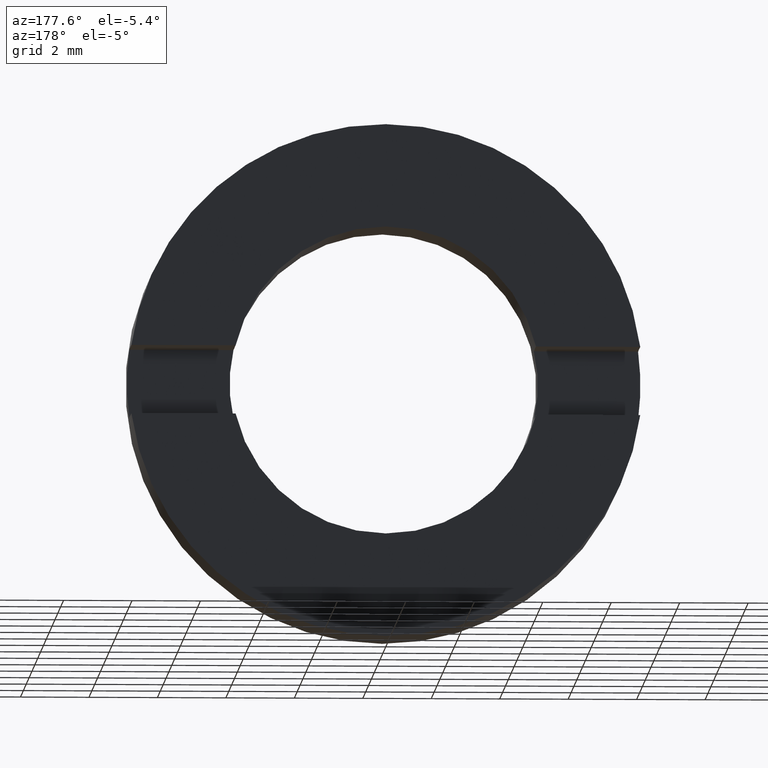
[diagram: clean part render]
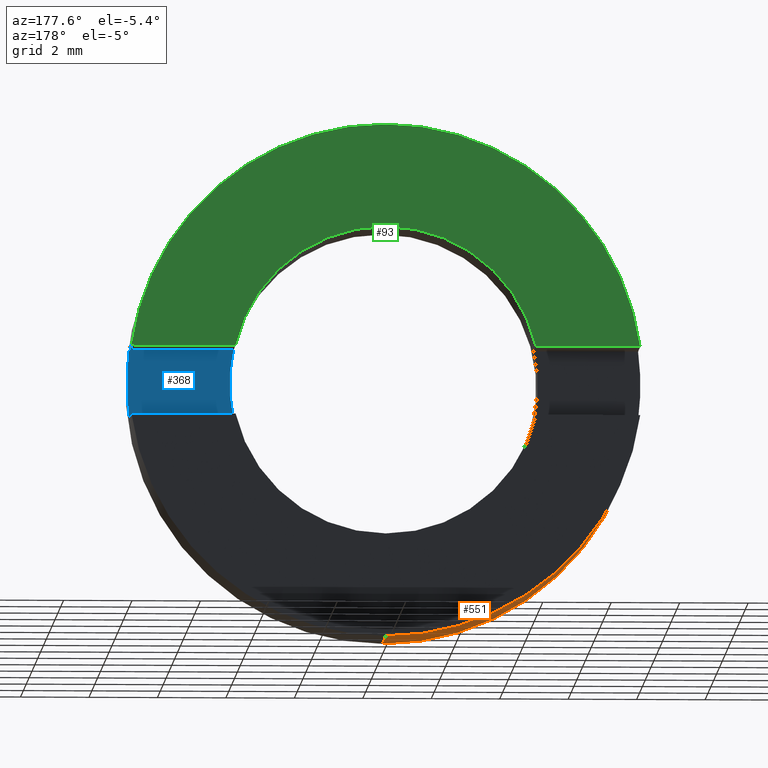
[diagram: same view with three faces highlighted in distinct colors, each labeled with its STEP entity id]
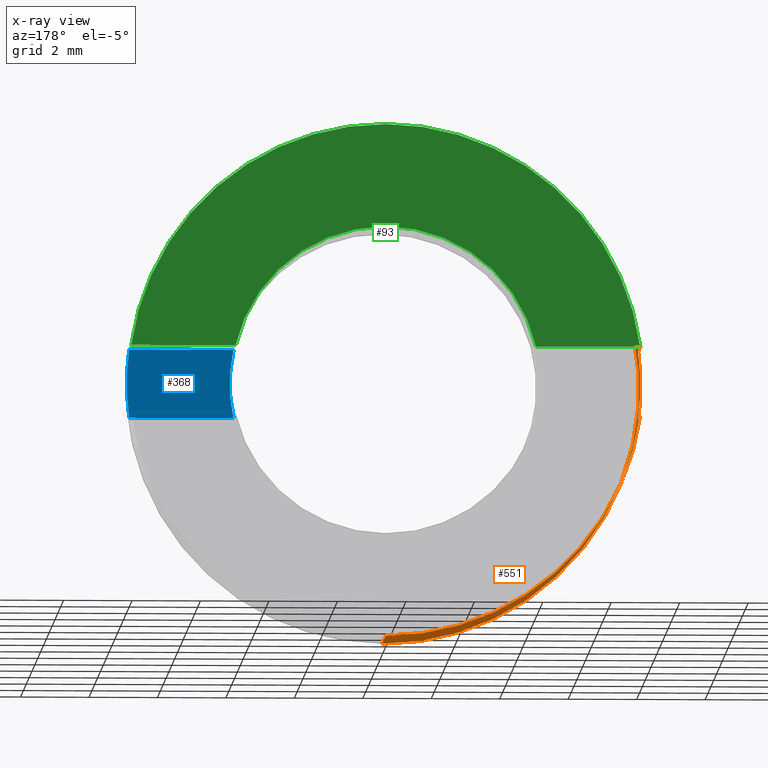
[diagram: x-ray of the same camera — body ghosted, the three highlighted faces saturated]
A machine part, auxiliary view with three faces highlighted in distinct colors.
The next image is the same camera in x-ray (body ghosted, the three faces saturated) — at least one of them is partly hidden behind the body in this view.
Their STEP definitions:

[orange] entity #551 — the highlighted cylindrical surface (partial cylindrical patch) has radius 7.5 mm, axis along (-0, 1, -0).
#2 = VERTEX_POINT ( 'NONE', #114 ) ;
#7 = CARTESIAN_POINT ( 'NONE',  ( 0.0000000000000000000, -1.964249787179434000, 7.500000000000007100 ) ) ;
#10 = EDGE_CURVE ( 'NONE', #89, #326, #40, .T. ) ;
#16 = DIRECTION ( 'NONE',  ( -0.0000000000000000000, 1.000000000000000000, -0.0000000000000000000 ) ) ;
#40 = LINE ( 'NONE', #259, #414 ) ;
#51 = EDGE_LOOP ( 'NONE', ( #472, #267, #538, #462, #66, #351, #221, #186 ) ) ;
#56 = DIRECTION ( 'NONE',  ( 0.0000000000000000000, 0.0000000000000000000, 1.000000000000000000 ) ) ;
#60 = LINE ( 'NONE', #69, #255 ) ;
#66 = ORIENTED_EDGE ( 'NONE', *, *, #465, .T. ) ;
#69 = CARTESIAN_POINT ( 'NONE',  ( -7.433034373659259200, 56.26084262701361600, 1.000000000000000000 ) ) ;
#75 = LINE ( 'NONE', #97, #333 ) ;
#89 = VERTEX_POINT ( 'NONE', #479 ) ;
#96 = CYLINDRICAL_SURFACE ( 'NONE', #343, 7.500000000000007100 ) ;
#97 = CARTESIAN_POINT ( 'NONE',  ( -7.433034373659259200, 56.26084262701361600, -1.000000000000000000 ) ) ;
#100 = EDGE_CURVE ( 'NONE', #319, #457, #188, .T. ) ;
#101 = CARTESIAN_POINT ( 'NONE',  ( 0.0000000000000000000, -4.464249787179428900, 0.0000000000000000000 ) ) ;
#114 = CARTESIAN_POINT ( 'NONE',  ( 9.184850993605157800E-016, -1.964249787179434000, -7.500000000000007100 ) ) ;
#121 = VECTOR ( 'NONE', #512, 1000.000000000000000 ) ;
#126 = DIRECTION ( 'NONE',  ( -0.0000000000000000000, 1.000000000000000000, -0.0000000000000000000 ) ) ;
#144 = CARTESIAN_POINT ( 'NONE',  ( 0.0000000000000000000, -1.964249787179434000, 0.0000000000000000000 ) ) ;
#154 = CARTESIAN_POINT ( 'NONE',  ( 0.0000000000000000000, 56.26084262701361600, 0.0000000000000000000 ) ) ;
#157 = CARTESIAN_POINT ( 'NONE',  ( 9.184850993605157800E-016, -4.464249787179428900, -7.500000000000007100 ) ) ;
#158 = AXIS2_PLACEMENT_3D ( 'NONE', #101, #419, #56 ) ;
#183 = AXIS2_PLACEMENT_3D ( 'NONE', #144, #198, #506 ) ;
#184 = CARTESIAN_POINT ( 'NONE',  ( 0.0000000000000000000, -1.964249787179434000, 0.0000000000000000000 ) ) ;
#186 = ORIENTED_EDGE ( 'NONE', *, *, #362, .F. ) ;
#188 = CIRCLE ( 'NONE', #537, 7.500000000000007100 ) ;
#198 = DIRECTION ( 'NONE',  ( -0.0000000000000000000, 1.000000000000000000, -0.0000000000000000000 ) ) ;
#202 = DIRECTION ( 'NONE',  ( 0.0000000000000000000, -1.000000000000000000, 0.0000000000000000000 ) ) ;
#215 = CIRCLE ( 'NONE', #391, 7.500000000000007100 ) ;
#221 = ORIENTED_EDGE ( 'NONE', *, *, #386, .T. ) ;
#228 = EDGE_CURVE ( 'NONE', #345, #326, #215, .T. ) ;
#244 = CARTESIAN_POINT ( 'NONE',  ( -7.433034373659268100, -1.964249787179430900, 1.000000000000000000 ) ) ;
#255 = VECTOR ( 'NONE', #202, 1000.000000000000000 ) ;
#259 = CARTESIAN_POINT ( 'NONE',  ( 0.0000000000000000000, 56.26084262701361600, 7.500000000000007100 ) ) ;
#267 = ORIENTED_EDGE ( 'NONE', *, *, #376, .T. ) ;
#305 = CARTESIAN_POINT ( 'NONE',  ( -7.433034373659258300, -3.464249787179428400, 0.9999999999999995600 ) ) ;
#319 = VERTEX_POINT ( 'NONE', #496 ) ;
#322 = DIRECTION ( 'NONE',  ( -0.0000000000000000000, 1.000000000000000000, -0.0000000000000000000 ) ) ;
#326 = VERTEX_POINT ( 'NONE', #7 ) ;
#333 = VECTOR ( 'NONE', #16, 1000.000000000000000 ) ;
#339 = LINE ( 'NONE', #425, #121 ) ;
#343 = AXIS2_PLACEMENT_3D ( 'NONE', #154, #515, #381 ) ;
#345 = VERTEX_POINT ( 'NONE', #244 ) ;
#346 = VERTEX_POINT ( 'NONE', #562 ) ;
#351 = ORIENTED_EDGE ( 'NONE', *, *, #100, .F. ) ;
#362 = EDGE_CURVE ( 'NONE', #2, #346, #521, .T. ) ;
#372 = FACE_OUTER_BOUND ( 'NONE', #51, .T. ) ;
#376 = EDGE_CURVE ( 'NONE', #427, #89, #433, .T. ) ;
#381 = DIRECTION ( 'NONE',  ( 0.0000000000000000000, 0.0000000000000000000, 1.000000000000000000 ) ) ;
#386 = EDGE_CURVE ( 'NONE', #319, #346, #75, .T. ) ;
#391 = AXIS2_PLACEMENT_3D ( 'NONE', #184, #322, #546 ) ;
#414 = VECTOR ( 'NONE', #126, 1000.000000000000000 ) ;
#419 = DIRECTION ( 'NONE',  ( -0.0000000000000000000, 1.000000000000000000, -0.0000000000000000000 ) ) ;
#425 = CARTESIAN_POINT ( 'NONE',  ( 9.184850993605157800E-016, 56.26084262701361600, -7.500000000000007100 ) ) ;
#427 = VERTEX_POINT ( 'NONE', #157 ) ;
#433 = CIRCLE ( 'NONE', #158, 7.500000000000007100 ) ;
#457 = VERTEX_POINT ( 'NONE', #305 ) ;
#462 = ORIENTED_EDGE ( 'NONE', *, *, #228, .F. ) ;
#465 = EDGE_CURVE ( 'NONE', #345, #457, #60, .T. ) ;
#472 = ORIENTED_EDGE ( 'NONE', *, *, #544, .F. ) ;
#479 = CARTESIAN_POINT ( 'NONE',  ( 0.0000000000000000000, -4.464249787179428900, 7.500000000000007100 ) ) ;
#496 = CARTESIAN_POINT ( 'NONE',  ( -7.433034373659258300, -3.464249787179428400, -0.9999999999999995600 ) ) ;
#506 = DIRECTION ( 'NONE',  ( 0.0000000000000000000, 0.0000000000000000000, 1.000000000000000000 ) ) ;
#512 = DIRECTION ( 'NONE',  ( -0.0000000000000000000, 1.000000000000000000, -0.0000000000000000000 ) ) ;
#515 = DIRECTION ( 'NONE',  ( -0.0000000000000000000, 1.000000000000000000, -0.0000000000000000000 ) ) ;
#521 = CIRCLE ( 'NONE', #183, 7.500000000000007100 ) ;
#531 = DIRECTION ( 'NONE',  ( 0.0000000000000000000, 0.0000000000000000000, 1.000000000000000000 ) ) ;
#537 = AXIS2_PLACEMENT_3D ( 'NONE', #541, #578, #531 ) ;
#538 = ORIENTED_EDGE ( 'NONE', *, *, #10, .T. ) ;
#541 = CARTESIAN_POINT ( 'NONE',  ( 0.0000000000000000000, -3.464249787179428400, 0.0000000000000000000 ) ) ;
#544 = EDGE_CURVE ( 'NONE', #427, #2, #339, .T. ) ;
#546 = DIRECTION ( 'NONE',  ( 0.0000000000000000000, 0.0000000000000000000, 1.000000000000000000 ) ) ;
#551 = ADVANCED_FACE ( 'NONE', ( #372 ), #96, .T. ) ;
#562 = CARTESIAN_POINT ( 'NONE',  ( -7.433034373659268100, -1.964249787179430900, -1.000000000000000000 ) ) ;
#578 = DIRECTION ( 'NONE',  ( 0.0000000000000000000, 1.000000000000000000, 0.0000000000000000000 ) ) ;

[blue] entity #368 — the highlighted planar face has unit normal (0, 1, 0).
#20 = CARTESIAN_POINT ( 'NONE',  ( 7.433034373659258300, -3.464249787179428400, -0.9999999999999995600 ) ) ;
#22 = CARTESIAN_POINT ( 'NONE',  ( 7.433034373659258300, -3.464249787179428400, 0.9999999999999995600 ) ) ;
#55 = FACE_OUTER_BOUND ( 'NONE', #550, .T. ) ;
#62 = VERTEX_POINT ( 'NONE', #22 ) ;
#70 = AXIS2_PLACEMENT_3D ( 'NONE', #534, #220, #266 ) ;
#87 = DIRECTION ( 'NONE',  ( 1.000000000000000000, 0.0000000000000000000, 0.0000000000000000000 ) ) ;
#106 = CARTESIAN_POINT ( 'NONE',  ( 0.0000000000000000000, -3.464249787179431100, 0.0000000000000000000 ) ) ;
#115 = EDGE_CURVE ( 'NONE', #395, #384, #309, .T. ) ;
#129 = ORIENTED_EDGE ( 'NONE', *, *, #199, .T. ) ;
#143 = CARTESIAN_POINT ( 'NONE',  ( 0.0000000000000000000, -3.464249787179428400, 0.0000000000000000000 ) ) ;
#150 = DIRECTION ( 'NONE',  ( 0.0000000000000000000, 1.000000000000000000, 0.0000000000000000000 ) ) ;
#155 = DIRECTION ( 'NONE',  ( -1.000000000000000000, -0.0000000000000000000, -0.0000000000000000000 ) ) ;
#170 = CARTESIAN_POINT ( 'NONE',  ( -26.85254027261461800, -3.464249787179431100, 1.000000000000000000 ) ) ;
#180 = ORIENTED_EDGE ( 'NONE', *, *, #115, .T. ) ;
#199 = EDGE_CURVE ( 'NONE', #384, #62, #448, .T. ) ;
#206 = AXIS2_PLACEMENT_3D ( 'NONE', #106, #150, #288 ) ;
#220 = DIRECTION ( 'NONE',  ( -0.0000000000000000000, -1.000000000000000000, -0.0000000000000000000 ) ) ;
#266 = DIRECTION ( 'NONE',  ( 8.881784197001253900E-015, 0.0000000000000000000, 1.000000000000000000 ) ) ;
#288 = DIRECTION ( 'NONE',  ( 0.0000000000000000000, -0.0000000000000000000, 1.000000000000000000 ) ) ;
#297 = CARTESIAN_POINT ( 'NONE',  ( -26.85254027261461800, -3.464249787179431100, -1.000000000000000000 ) ) ;
#298 = AXIS2_PLACEMENT_3D ( 'NONE', #143, #464, #418 ) ;
#309 = CIRCLE ( 'NONE', #70, 4.500000000000007100 ) ;
#310 = CIRCLE ( 'NONE', #298, 7.500000000000007100 ) ;
#348 = EDGE_CURVE ( 'NONE', #62, #510, #310, .T. ) ;
#367 = CARTESIAN_POINT ( 'NONE',  ( 4.387482193696067500, -3.464249787179428400, 0.9999999999999995600 ) ) ;
#368 = ADVANCED_FACE ( 'NONE', ( #55 ), #556, .T. ) ;
#384 = VERTEX_POINT ( 'NONE', #367 ) ;
#388 = VECTOR ( 'NONE', #155, 1000.000000000000000 ) ;
#395 = VERTEX_POINT ( 'NONE', #411 ) ;
#411 = CARTESIAN_POINT ( 'NONE',  ( 4.387482193696067500, -3.464249787179428400, -0.9999999999999995600 ) ) ;
#418 = DIRECTION ( 'NONE',  ( 0.0000000000000000000, 0.0000000000000000000, 1.000000000000000000 ) ) ;
#448 = LINE ( 'NONE', #170, #491 ) ;
#459 = EDGE_CURVE ( 'NONE', #510, #395, #505, .T. ) ;
#460 = ORIENTED_EDGE ( 'NONE', *, *, #459, .T. ) ;
#464 = DIRECTION ( 'NONE',  ( 0.0000000000000000000, 1.000000000000000000, 0.0000000000000000000 ) ) ;
#491 = VECTOR ( 'NONE', #87, 1000.000000000000000 ) ;
#505 = LINE ( 'NONE', #297, #388 ) ;
#510 = VERTEX_POINT ( 'NONE', #20 ) ;
#534 = CARTESIAN_POINT ( 'NONE',  ( 0.0000000000000000000, -3.464249787179428400, 0.0000000000000000000 ) ) ;
#550 = EDGE_LOOP ( 'NONE', ( #565, #460, #180, #129 ) ) ;
#556 = PLANE ( 'NONE',  #206 ) ;
#565 = ORIENTED_EDGE ( 'NONE', *, *, #348, .T. ) ;

[green] entity #93 — the highlighted planar face has unit normal (0, -1, 0).
#5 = CARTESIAN_POINT ( 'NONE',  ( 4.387482193696067500, -1.964249787179434000, 0.9999999999999995600 ) ) ;
#6 = AXIS2_PLACEMENT_3D ( 'NONE', #446, #85, #314 ) ;
#7 = CARTESIAN_POINT ( 'NONE',  ( 0.0000000000000000000, -1.964249787179434000, 7.500000000000007100 ) ) ;
#11 = VERTEX_POINT ( 'NONE', #164 ) ;
#15 = DIRECTION ( 'NONE',  ( 1.000000000000000000, 0.0000000000000000000, 0.0000000000000000000 ) ) ;
#28 = EDGE_CURVE ( 'NONE', #11, #193, #283, .T. ) ;
#43 = LINE ( 'NONE', #116, #241 ) ;
#46 = ORIENTED_EDGE ( 'NONE', *, *, #61, .F. ) ;
#61 = EDGE_CURVE ( 'NONE', #193, #331, #136, .T. ) ;
#72 = EDGE_CURVE ( 'NONE', #326, #416, #327, .T. ) ;
#83 = CARTESIAN_POINT ( 'NONE',  ( 0.0000000000000000000, -1.964249787179434000, 4.500000000000007100 ) ) ;
#85 = DIRECTION ( 'NONE',  ( -0.0000000000000000000, 1.000000000000000000, -0.0000000000000000000 ) ) ;
#93 = ADVANCED_FACE ( 'NONE', ( #123 ), #172, .F. ) ;
#99 = CARTESIAN_POINT ( 'NONE',  ( 7.433034373659247700, -1.964249787179430900, 1.000000000000000000 ) ) ;
#116 = CARTESIAN_POINT ( 'NONE',  ( -26.85254027261461800, -1.964249787179430900, 1.000000000000000000 ) ) ;
#123 = FACE_OUTER_BOUND ( 'NONE', #254, .T. ) ;
#136 = CIRCLE ( 'NONE', #557, 4.500000000000007100 ) ;
#147 = CARTESIAN_POINT ( 'NONE',  ( -26.85254027261461800, -1.964249787179430900, 1.000000000000000000 ) ) ;
#149 = LINE ( 'NONE', #147, #422 ) ;
#164 = CARTESIAN_POINT ( 'NONE',  ( -4.387482193696067500, -1.964249787179434000, 0.9999999999999995600 ) ) ;
#172 = PLANE ( 'NONE',  #445 ) ;
#184 = CARTESIAN_POINT ( 'NONE',  ( 0.0000000000000000000, -1.964249787179434000, 0.0000000000000000000 ) ) ;
#193 = VERTEX_POINT ( 'NONE', #83 ) ;
#215 = CIRCLE ( 'NONE', #391, 7.500000000000007100 ) ;
#225 = DIRECTION ( 'NONE',  ( -0.0000000000000000000, 1.000000000000000000, -0.0000000000000000000 ) ) ;
#228 = EDGE_CURVE ( 'NONE', #345, #326, #215, .T. ) ;
#238 = ORIENTED_EDGE ( 'NONE', *, *, #72, .T. ) ;
#241 = VECTOR ( 'NONE', #522, 1000.000000000000000 ) ;
#244 = CARTESIAN_POINT ( 'NONE',  ( -7.433034373659268100, -1.964249787179430900, 1.000000000000000000 ) ) ;
#254 = EDGE_LOOP ( 'NONE', ( #292, #238, #504, #46, #275, #302 ) ) ;
#265 = DIRECTION ( 'NONE',  ( 0.0000000000000000000, 0.0000000000000000000, 1.000000000000000000 ) ) ;
#275 = ORIENTED_EDGE ( 'NONE', *, *, #28, .F. ) ;
#283 = CIRCLE ( 'NONE', #413, 4.500000000000007100 ) ;
#292 = ORIENTED_EDGE ( 'NONE', *, *, #228, .T. ) ;
#301 = CARTESIAN_POINT ( 'NONE',  ( 0.0000000000000000000, -1.964249787179434000, 0.0000000000000000000 ) ) ;
#302 = ORIENTED_EDGE ( 'NONE', *, *, #434, .F. ) ;
#307 = DIRECTION ( 'NONE',  ( -0.0000000000000000000, 1.000000000000000000, -0.0000000000000000000 ) ) ;
#314 = DIRECTION ( 'NONE',  ( 0.0000000000000000000, 0.0000000000000000000, 1.000000000000000000 ) ) ;
#320 = DIRECTION ( 'NONE',  ( 0.0000000000000000000, -1.000000000000000000, 0.0000000000000000000 ) ) ;
#322 = DIRECTION ( 'NONE',  ( -0.0000000000000000000, 1.000000000000000000, -0.0000000000000000000 ) ) ;
#326 = VERTEX_POINT ( 'NONE', #7 ) ;
#327 = CIRCLE ( 'NONE', #6, 7.500000000000007100 ) ;
#331 = VERTEX_POINT ( 'NONE', #5 ) ;
#345 = VERTEX_POINT ( 'NONE', #244 ) ;
#355 = DIRECTION ( 'NONE',  ( 0.0000000000000000000, -0.0000000000000000000, -1.000000000000000000 ) ) ;
#356 = EDGE_CURVE ( 'NONE', #331, #416, #149, .T. ) ;
#391 = AXIS2_PLACEMENT_3D ( 'NONE', #184, #322, #546 ) ;
#413 = AXIS2_PLACEMENT_3D ( 'NONE', #301, #307, #518 ) ;
#416 = VERTEX_POINT ( 'NONE', #99 ) ;
#422 = VECTOR ( 'NONE', #15, 1000.000000000000000 ) ;
#434 = EDGE_CURVE ( 'NONE', #345, #11, #43, .T. ) ;
#445 = AXIS2_PLACEMENT_3D ( 'NONE', #585, #320, #355 ) ;
#446 = CARTESIAN_POINT ( 'NONE',  ( 0.0000000000000000000, -1.964249787179434000, 0.0000000000000000000 ) ) ;
#447 = CARTESIAN_POINT ( 'NONE',  ( 0.0000000000000000000, -1.964249787179434000, 0.0000000000000000000 ) ) ;
#504 = ORIENTED_EDGE ( 'NONE', *, *, #356, .F. ) ;
#518 = DIRECTION ( 'NONE',  ( 0.0000000000000000000, 0.0000000000000000000, 1.000000000000000000 ) ) ;
#522 = DIRECTION ( 'NONE',  ( 1.000000000000000000, 0.0000000000000000000, 0.0000000000000000000 ) ) ;
#546 = DIRECTION ( 'NONE',  ( 0.0000000000000000000, 0.0000000000000000000, 1.000000000000000000 ) ) ;
#557 = AXIS2_PLACEMENT_3D ( 'NONE', #447, #225, #265 ) ;
#585 = CARTESIAN_POINT ( 'NONE',  ( 4.500000000000007100, -1.964249787179430900, 0.0000000000000000000 ) ) ;